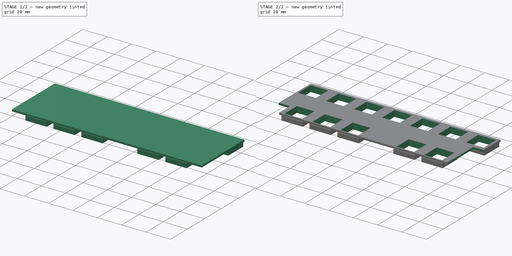
[diagram: build sequence overview — one tinted view per stage of 2, left to right]
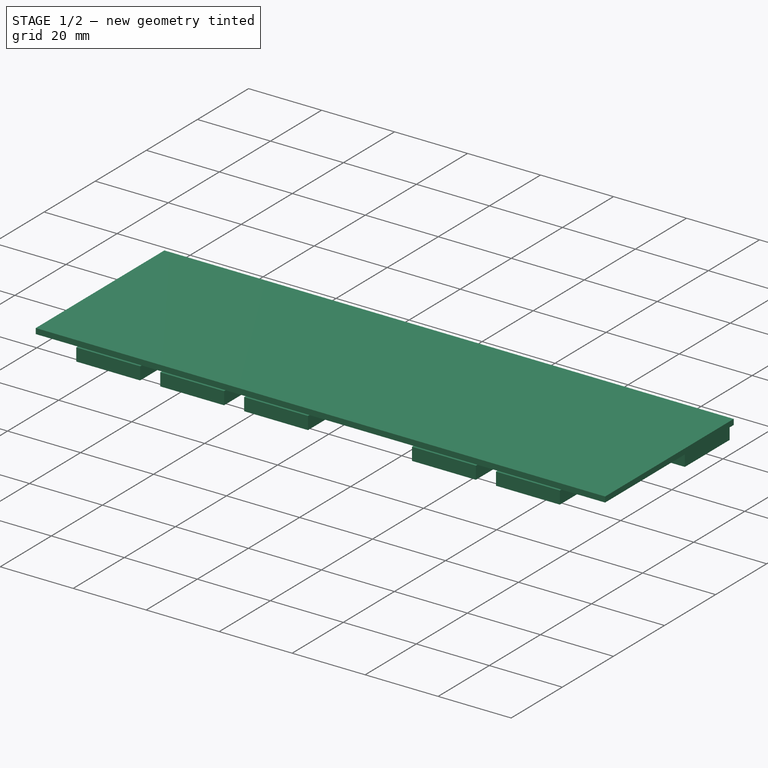
[diagram: stage 1 of 2 — iso view after this stage's code; geometry added in this stage tinted green]
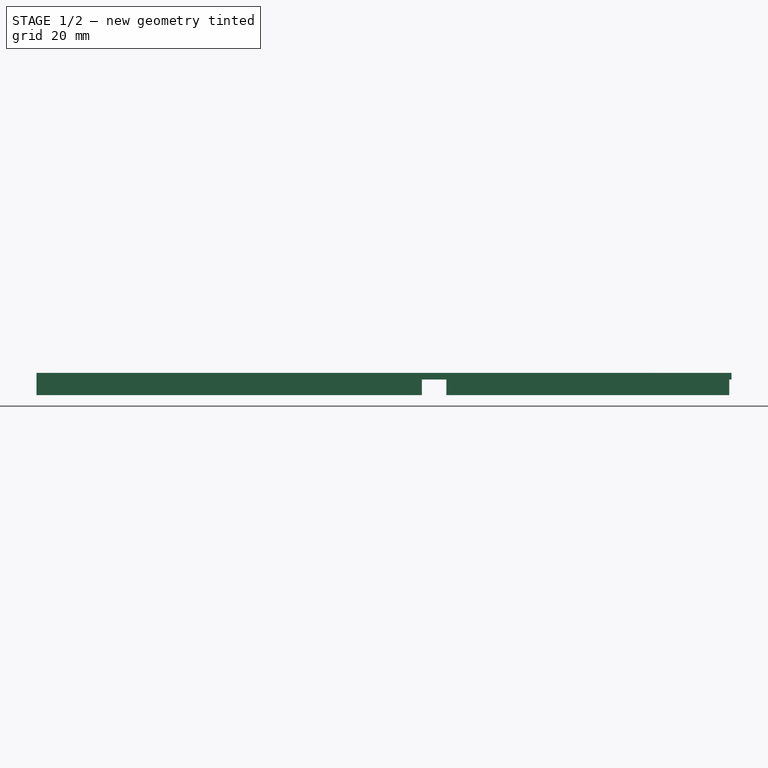
[diagram: stage 1 of 2 — front view after this stage's code; geometry added in this stage tinted green]
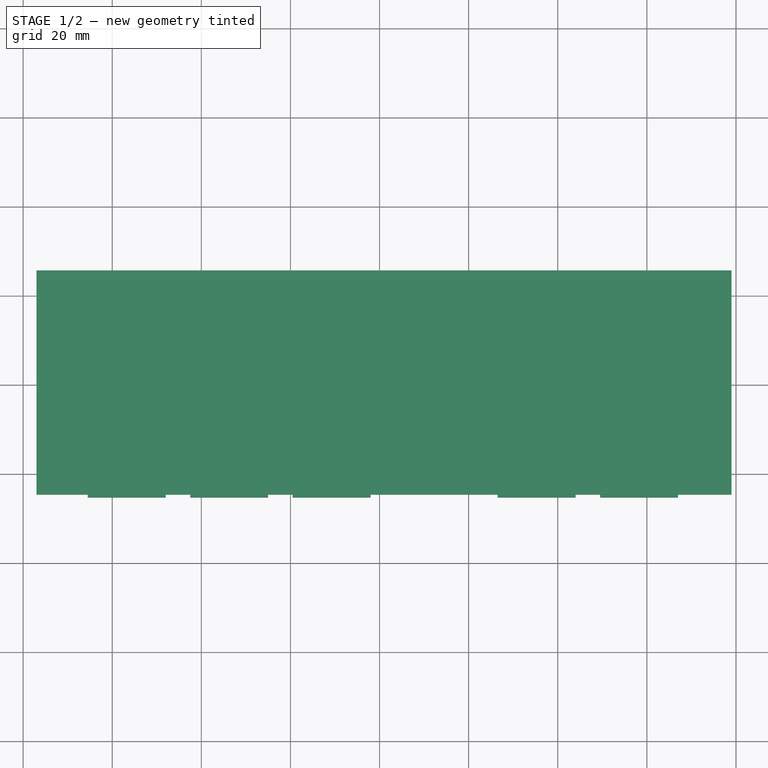
[diagram: stage 1 of 2 — top view after this stage's code; geometry added in this stage tinted green]
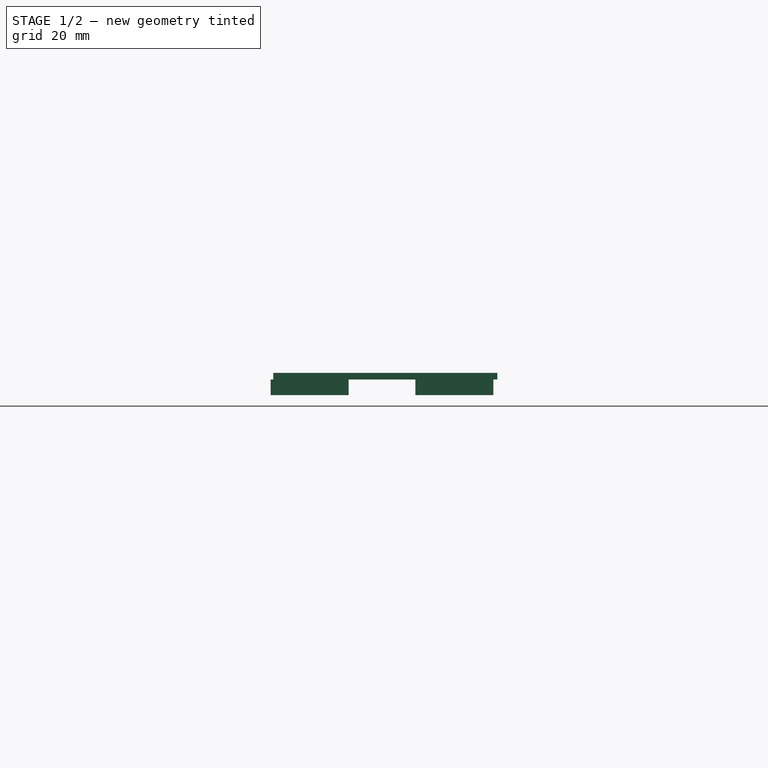
[diagram: stage 1 of 2 — right view after this stage's code; geometry added in this stage tinted green]
FCSTD DOCUMENT  (FreeCAD 0.20R29603 (Git))
Label: KeyPlate
License: All rights reserved
LicenseURL: http://en.wikipedia.org/wiki/All_rights_reserved
objects: Sketcher::SketchObject×4, PartDesign::Pad×2, PartDesign::Plane×2, PartDesign::Pocket×2, PartDesign::Body×1
note: 15 computed .brp shape members not serialized (recipe doc carries the construction recipe); baked Part::Feature solids carry a one-line shape summary decoded from their .brp

FEATURE [Sketcher::SketchObject] Sketch001
  FullyConstrained = true
  MapMode = 5
  Support = -> [XY_Plane]
  sketch-geometry (4):
    g0: LineSegment StartX=43 StartY=-54.35 StartZ=0 EndX=199 EndY=-54.35 EndZ=0
    g1: LineSegment StartX=199 StartY=-54.35 StartZ=0 EndX=199 EndY=-104.67 EndZ=0
    g2: LineSegment StartX=199 StartY=-104.67 StartZ=0 EndX=43 EndY=-104.67 EndZ=0
    g3: LineSegment StartX=43 StartY=-104.67 StartZ=0 EndX=43 EndY=-54.35 EndZ=0
  constraints (12):
    c: Coincident(g0,g1)
    c: Coincident(g1,g2)
    c: Coincident(g2,g3)
    c: Coincident(g3,g0)
    c: Horizontal(g0)
    c: Horizontal(g2)
    c: Vertical(g1)
    c: Vertical(g3)
    c: DistanceY(g2,g-1) = 104.67
    c: DistanceX(g-1,g2) = 43
    c: DistanceX(g-1,g0) = 199
    c: DistanceY(g0,g-1) = 54.35
FEATURE [PartDesign::Pad] Pad
  Direction = (0,0,1)
  Length = 1.5
  Length2 = 10
  Profile = -> Sketch001
  ReferenceAxis = -> Sketch001 [N_Axis]
  Type = 0
FEATURE [Sketcher::SketchObject] Sketch007
  FullyConstrained = true
  MapMode = 5
  Placement = pos=(0,0,1.5) rot=(0,0,1;0rad)
  sketch-geometry (8):
    g0: LineSegment StartX=38 StartY=-108.92 StartZ=0 EndX=52.19 EndY=-108.92 EndZ=0
    g1: LineSegment StartX=52.19 StartY=-108.92 StartZ=0 EndX=52.19 EndY=-92 EndZ=0
    g2: LineSegment StartX=52.19 StartY=-92 StartZ=0 EndX=38 EndY=-92 EndZ=0
    g3: LineSegment StartX=38 StartY=-92 StartZ=0 EndX=38 EndY=-108.92 EndZ=0
    g4: LineSegment StartX=207.85 StartY=-74.42 StartZ=0 EndX=190.68 EndY=-74.42 EndZ=0
    g5: LineSegment StartX=190.68 StartY=-74.42 StartZ=0 EndX=190.68 EndY=-113.38 EndZ=0
    g6: LineSegment StartX=190.68 StartY=-113.38 StartZ=0 EndX=207.85 EndY=-113.38 EndZ=0
    g7: LineSegment StartX=207.85 StartY=-113.38 StartZ=0 EndX=207.85 EndY=-74.42 EndZ=0
  constraints (24):
    c: Coincident(g0,g1)
    c: Coincident(g1,g2)
    c: Coincident(g2,g3)
    c: Coincident(g3,g0)
    c: Horizontal(g0)
    c: Horizontal(g2)
    c: Vertical(g1)
    c: Vertical(g3)
    c: DistanceY(g1,g-1) = 92
    c: DistanceX(g-1,g1) = 52.19
    c: Coincident(g4,g5)
    c: Coincident(g5,g6)
    c: Coincident(g6,g7)
    c: Coincident(g7,g4)
    c: Horizontal(g4)
    c: Horizontal(g6)
    c: Vertical(g5)
    c: Vertical(g7)
    c: DistanceX(g-1,g4) = 190.68
    c: DistanceY(g4,g-1) = 74.42
    c: DistanceX(g-1,g0) = 38
    c: DistanceY(g0,g-1) = 108.92
    c: DistanceX(g-1,g6) = 207.85
    c: DistanceY(g6,g-1) = 113.38
FEATURE [PartDesign::Plane] DatumPlane
  Length = 258.162
  MapMode = 5
  Placement = pos=(0,0,0) rot=(1,0,0;3.14159rad)
  ResizeMode = 0
  Support = -> [Pad]
  Width = 164.412
FEATURE [Sketcher::SketchObject] Sketch004
  FullyConstrained = true
  MapMode = 5
  Placement = pos=(0,0,0) rot=(1,0,0;3.14159rad)
  Support = -> [DatumPlane]
  sketch-geometry (60):
    g0: LineSegment StartX=43 StartY=72.75 StartZ=0 EndX=60.5 EndY=72.75 EndZ=0
    g1: LineSegment StartX=60.5 StartY=72.75 StartZ=0 EndX=60.5 EndY=55.25 EndZ=0
    g2: LineSegment StartX=60.5 StartY=55.25 StartZ=0 EndX=43 EndY=55.25 EndZ=0
    g3: LineSegment StartX=43 StartY=55.25 StartZ=0 EndX=43 EndY=72.75 EndZ=0
    g4: GeomPoint X=51.75 Y=64 Z=0
    g5: LineSegment StartX=66 StartY=72.75 StartZ=0 EndX=83.5 EndY=72.75 EndZ=0
    g6: LineSegment StartX=83.5 StartY=72.75 StartZ=0 EndX=83.5 EndY=55.25 EndZ=0
    g7: LineSegment StartX=83.5 StartY=55.25 StartZ=0 EndX=66 EndY=55.25 EndZ=0
    g8: LineSegment StartX=66 StartY=55.25 StartZ=0 EndX=66 EndY=72.75 EndZ=0
    g9: GeomPoint X=74.75 Y=64 Z=0
    g10: LineSegment StartX=89 StartY=72.75 StartZ=0 EndX=106.5 EndY=72.75 EndZ=0
    g11: LineSegment StartX=106.5 StartY=72.75 StartZ=0 EndX=106.5 EndY=55.25 EndZ=0
    g12: LineSegment StartX=106.5 StartY=55.25 StartZ=0 EndX=89 EndY=55.25 EndZ=0
    g13: LineSegment StartX=89 StartY=55.25 StartZ=0 EndX=89 EndY=72.75 EndZ=0
    g14: GeomPoint X=97.75 Y=64 Z=0
    g15: LineSegment StartX=112 StartY=72.75 StartZ=0 EndX=129.5 EndY=72.75 EndZ=0
    g16: LineSegment StartX=129.5 StartY=72.75 StartZ=0 EndX=129.5 EndY=55.25 EndZ=0
    g17: LineSegment StartX=129.5 StartY=55.25 StartZ=0 EndX=112 EndY=55.25 EndZ=0
    g18: LineSegment StartX=112 StartY=55.25 StartZ=0 EndX=112 EndY=72.75 EndZ=0
    g19: GeomPoint X=120.75 Y=64 Z=0
    g20: LineSegment StartX=135 StartY=72.75 StartZ=0 EndX=152.5 EndY=72.75 EndZ=0
    g21: LineSegment StartX=152.5 StartY=72.75 StartZ=0 EndX=152.5 EndY=55.25 EndZ=0
    g22: LineSegment StartX=152.5 StartY=55.25 StartZ=0 EndX=135 EndY=55.25 EndZ=0
    g23: LineSegment StartX=135 StartY=55.25 StartZ=0 EndX=135 EndY=72.75 EndZ=0
    g24: GeomPoint X=143.75 Y=64 Z=0
    g25: LineSegment StartX=158 StartY=72.75 StartZ=0 EndX=175.5 EndY=72.75 EndZ=0
    g26: LineSegment StartX=175.5 StartY=72.75 StartZ=0 EndX=175.5 EndY=55.25 EndZ=0
    g27: LineSegment StartX=175.5 StartY=55.25 StartZ=0 EndX=158 EndY=55.25 EndZ=0
    g28: LineSegment StartX=158 StartY=55.25 StartZ=0 EndX=158 EndY=72.75 EndZ=0
    g29: GeomPoint X=166.75 Y=64 Z=0
    g30: LineSegment StartX=181 StartY=72.75 StartZ=0 EndX=198.5 EndY=72.75 EndZ=0
    g31: LineSegment StartX=198.5 StartY=72.75 StartZ=0 EndX=198.5 EndY=55.25 EndZ=0
    g32: LineSegment StartX=198.5 StartY=55.25 StartZ=0 EndX=181 EndY=55.25 EndZ=0
    g33: LineSegment StartX=181 StartY=55.25 StartZ=0 EndX=181 EndY=72.75 EndZ=0
    g34: GeomPoint X=189.75 Y=64 Z=0
    g35: LineSegment StartX=54.5 StartY=105.25 StartZ=0 EndX=72 EndY=105.25 EndZ=0
    g36: LineSegment StartX=72 StartY=105.25 StartZ=0 EndX=72 EndY=87.75 EndZ=0
    g37: LineSegment StartX=72 StartY=87.75 StartZ=0 EndX=54.5 EndY=87.75 EndZ=0
    g38: LineSegment StartX=54.5 StartY=87.75 StartZ=0 EndX=54.5 EndY=105.25 EndZ=0
    g39: GeomPoint X=63.25 Y=96.5 Z=0
    g40: LineSegment StartX=77.5 StartY=105.25 StartZ=0 EndX=95 EndY=105.25 EndZ=0
    g41: LineSegment StartX=95 StartY=105.25 StartZ=0 EndX=95 EndY=87.75 EndZ=0
    g42: LineSegment StartX=95 StartY=87.75 StartZ=0 EndX=77.5 EndY=87.75 EndZ=0
    g43: LineSegment StartX=77.5 StartY=87.75 StartZ=0 EndX=77.5 EndY=105.25 EndZ=0
    g44: GeomPoint X=86.25 Y=96.5 Z=0
    g45: LineSegment StartX=100.5 StartY=105.25 StartZ=0 EndX=118 EndY=105.25 EndZ=0
    g46: LineSegment StartX=118 StartY=105.25 StartZ=0 EndX=118 EndY=87.75 EndZ=0
    g47: LineSegment StartX=118 StartY=87.75 StartZ=0 EndX=100.5 EndY=87.75 EndZ=0
    g48: LineSegment StartX=100.5 StartY=87.75 StartZ=0 EndX=100.5 EndY=105.25 EndZ=0
    g49: GeomPoint X=109.25 Y=96.5 Z=0
    g50: LineSegment StartX=146.5 StartY=105.25 StartZ=0 EndX=164 EndY=105.25 EndZ=0
    g51: LineSegment StartX=164 StartY=105.25 StartZ=0 EndX=164 EndY=87.75 EndZ=0
    g52: LineSegment StartX=164 StartY=87.75 StartZ=0 EndX=146.5 EndY=87.75 EndZ=0
    g53: LineSegment StartX=146.5 StartY=87.75 StartZ=0 EndX=146.5 EndY=105.25 EndZ=0
    g54: GeomPoint X=155.25 Y=96.5 Z=0
    g55: LineSegment StartX=169.5 StartY=105.25 StartZ=0 EndX=187 EndY=105.25 EndZ=0
    g56: LineSegment StartX=187 StartY=105.25 StartZ=0 EndX=187 EndY=87.75 EndZ=0
    g57: LineSegment StartX=187 StartY=87.75 StartZ=0 EndX=169.5 EndY=87.75 EndZ=0
    g58: LineSegment StartX=169.5 StartY=87.75 StartZ=0 EndX=169.5 EndY=105.25 EndZ=0
    g59: GeomPoint X=178.25 Y=96.5 Z=0
  constraints (156):
    c: Coincident(g0,g1)
    c: Coincident(g1,g2)
    c: Coincident(g2,g3)
    c: Coincident(g3,g0)
    c: Horizontal(g0)
    c: Horizontal(g2)
    c: Vertical(g1)
    c: Vertical(g3)
    c: Symmetric(g0,g2,g4)
    c: Coincident(g5,g6)
    c: Coincident(g6,g7)
    c: Coincident(g7,g8)
    c: Coincident(g8,g5)
    c: Horizontal(g5)
    c: Horizontal(g7)
    c: Vertical(g6)
    c: Vertical(g8)
    c: Symmetric(g5,g7,g9)
    c: Coincident(g10,g11)
    c: Coincident(g11,g12)
    c: Coincident(g12,g13)
    c: Coincident(g13,g10)
    c: Horizontal(g10)
    c: Horizontal(g12)
    c: Vertical(g11)
    c: Vertical(g13)
    c: Symmetric(g10,g12,g14)
    c: Coincident(g15,g16)
    c: Coincident(g16,g17)
    c: Coincident(g17,g18)
    c: Coincident(g18,g15)
    c: Horizontal(g15)
    c: Horizontal(g17)
    c: Vertical(g16)
    c: Vertical(g18)
    c: Symmetric(g15,g17,g19)
    c: Coincident(g20,g21)
    c: Coincident(g21,g22)
    c: Coincident(g22,g23)
    c: Coincident(g23,g20)
    c: Horizontal(g20)
    c: Horizontal(g22)
    c: Vertical(g21)
    c: Vertical(g23)
    c: Symmetric(g20,g22,g24)
    c: Coincident(g25,g26)
    c: Coincident(g26,g27)
    c: Coincident(g27,g28)
    c: Coincident(g28,g25)
    c: Horizontal(g25)
    c: Horizontal(g27)
    c: Vertical(g26)
    c: Vertical(g28)
    c: Symmetric(g25,g27,g29)
    c: Coincident(g30,g31)
    c: Coincident(g31,g32)
    c: Coincident(g32,g33)
    c: Coincident(g33,g30)
    c: Horizontal(g30)
    c: Horizontal(g32)
    c: Vertical(g31)
    c: Vertical(g33)
    c: Symmetric(g30,g32,g34)
    c: Coincident(g35,g36)
    c: Coincident(g36,g37)
    c: Coincident(g37,g38)
    c: Coincident(g38,g35)
    c: Horizontal(g35)
    c: Horizontal(g37)
    c: Vertical(g36)
    c: Vertical(g38)
    c: DistanceX(g37,g37) = 17.5
    c: Symmetric(g35,g37,g39)
    c: Coincident(g40,g41)
    c: Coincident(g41,g42)
    c: Coincident(g42,g43)
    c: Coincident(g43,g40)
    c: Horizontal(g40)
    c: Horizontal(g42)
    c: Vertical(g41)
    c: Vertical(g43)
    c: Symmetric(g40,g42,g44)
    c: Coincident(g45,g46)
    c: Coincident(g46,g47)
    c: Coincident(g47,g48)
    c: Coincident(g48,g45)
    c: Horizontal(g45)
    c: Horizontal(g47)
    c: Vertical(g46)
    c: Vertical(g48)
    c: Symmetric(g45,g47,g49)
    c: Coincident(g50,g51)
    c: Coincident(g51,g52)
    c: Coincident(g52,g53)
    c: Coincident(g53,g50)
    c: Horizontal(g50)
    c: Horizontal(g52)
    c: Vertical(g51)
    c: Vertical(g53)
    c: Symmetric(g50,g52,g54)
    c: Coincident(g55,g56)
    c: Coincident(g56,g57)
    c: Coincident(g57,g58)
    c: Coincident(g58,g55)
    c: Horizontal(g55)
    c: Horizontal(g57)
    c: Vertical(g56)
    c: Vertical(g58)
    c: Symmetric(g55,g57,g59)
    c: DistanceY(g4,g-1) = -64
    c: DistanceX(g-1,g4) = 51.75
    c: DistanceY(g9,g-1) = -64
    c: DistanceX(g-1,g9) = 74.75
    c: DistanceY(g14,g-1) = -64
    c: DistanceX(g-1,g14) = 97.75
    c: DistanceX(g-1,g19) = 120.75
    c: DistanceY(g19,g-1) = -64
    c: DistanceX(g-1,g24) = 143.75
    c: DistanceY(g24,g-1) = -64
    c: DistanceX(g-1,g29) = 166.75
    c: DistanceY(g29,g-1) = -64
    c: DistanceX(g-1,g34) = 189.75
    c: DistanceY(g34,g-1) = -64
    c: DistanceY(g39,g-1) = -96.5
    c: DistanceX(g-1,g39) = 63.25
    c: DistanceY(g44,g-1) = -96.5
    c: DistanceX(g-1,g44) = 86.25
    c: DistanceX(g-1,g49) = 109.25
    c: DistanceY(g49,g-1) = -96.5
    c: DistanceX(g-1,g54) = 155.25
    c: DistanceY(g54,g-1) = -96.5
    c: DistanceX(g-1,g59) = 178.25
    c: DistanceY(g59,g-1) = -96.5
    c: Equal(g37,g42)
    c: Equal(g42,g41)
    c: Equal(g37,g36)
    c: Equal(g37,g47)
    c: Equal(g47,g46)
    c: Equal(g47,g52)
    c: Equal(g52,g51)
    c: Equal(g51,g57)
    c: Equal(g57,g56)
    c: Equal(g42,g2)
    c: Equal(g2,g1)
    c: Equal(g1,g7)
    c: Equal(g7,g6)
    c: Equal(g6,g12)
    c: Equal(g12,g11)
    c: Equal(g11,g16)
    c: Equal(g16,g17)
    c: Equal(g17,g22)
    c: Equal(g22,g21)
    c: Equal(g21,g27)
    c: Equal(g27,g26)
    c: Equal(g26,g32)
    c: Equal(g32,g31)
FEATURE [PartDesign::Pad] Pad001
  BaseFeature = -> Pad
  Direction = (0,0,-1)
  Length = 3.5
  Length2 = 10
  Profile = -> Sketch004
  ReferenceAxis = -> Sketch004 [N_Axis]
  Type = 0
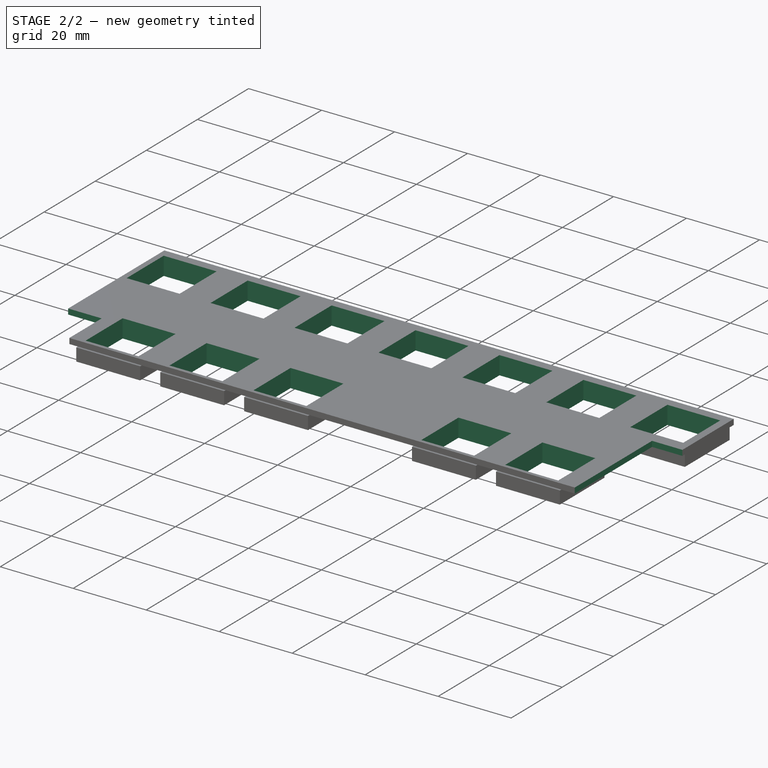
[diagram: stage 2 of 2 — iso view after this stage's code; geometry added in this stage tinted green]
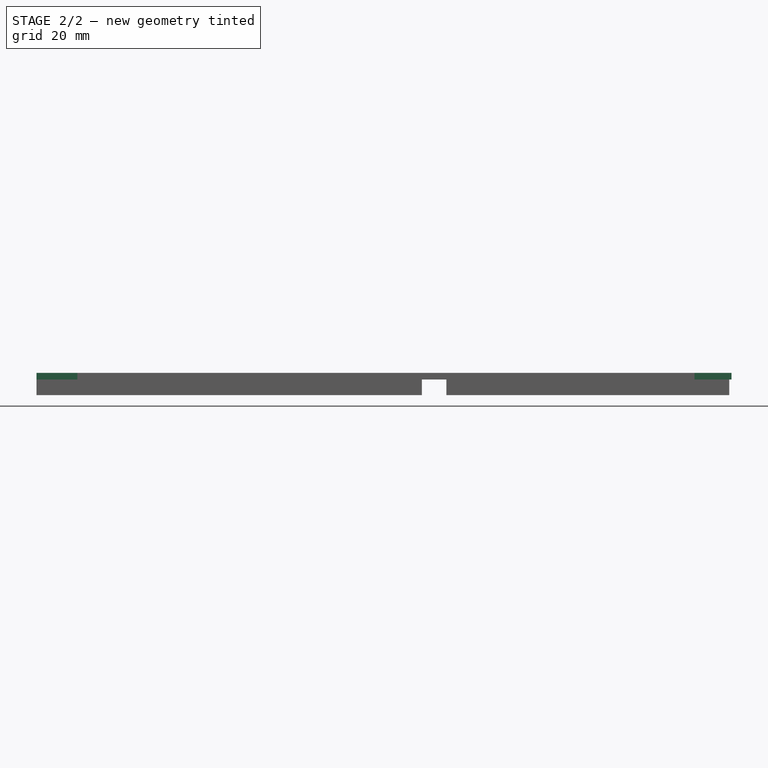
[diagram: stage 2 of 2 — front view after this stage's code; geometry added in this stage tinted green]
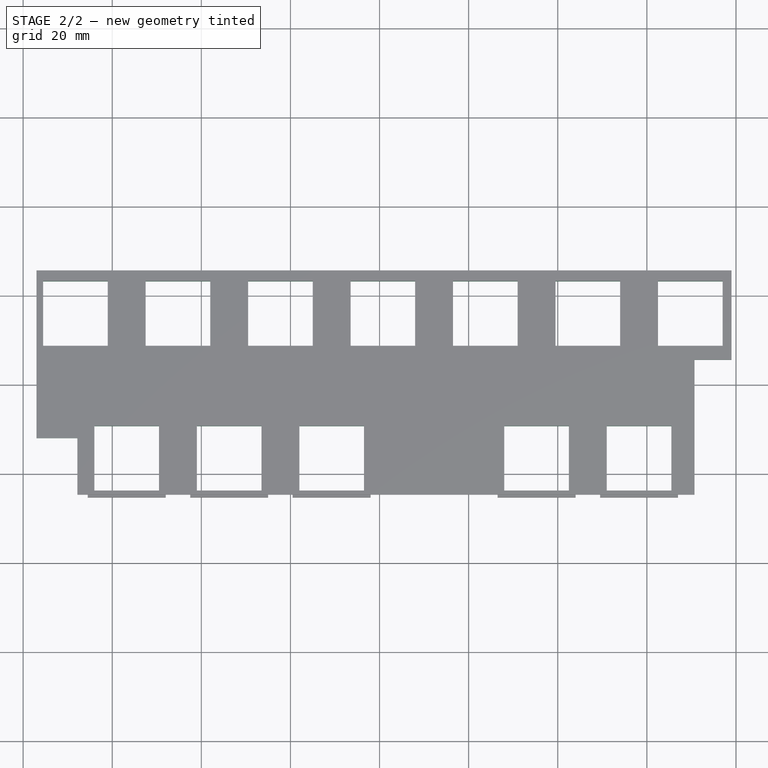
[diagram: stage 2 of 2 — top view after this stage's code; geometry added in this stage tinted green]
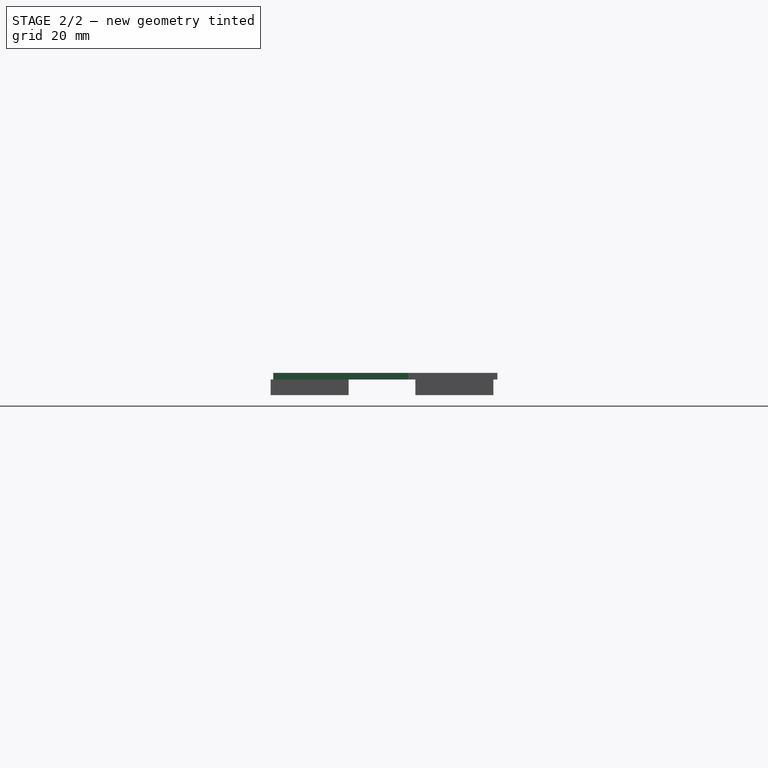
[diagram: stage 2 of 2 — right view after this stage's code; geometry added in this stage tinted green]
FEATURE [PartDesign::Plane] DatumPlane001
  Length = 258.162
  MapMode = 5
  Placement = pos=(0,0,1.5) rot=(0,0,1;0rad)
  ResizeMode = 0
  Support = -> [Pad001]
  Width = 164.412
FEATURE [Sketcher::SketchObject] Sketch005
  FullyConstrained = true
  MapMode = 5
  Placement = pos=(0,0,1.5) rot=(0,0,1;0rad)
  Support = -> [DatumPlane001]
  sketch-geometry (61):
    g0: LineSegment StartX=44.5 StartY=-56.75 StartZ=0 EndX=59 EndY=-56.75 EndZ=0
    g1: LineSegment StartX=59 StartY=-56.75 StartZ=0 EndX=59 EndY=-71.25 EndZ=0
    g2: LineSegment StartX=59 StartY=-71.25 StartZ=0 EndX=44.5 EndY=-71.25 EndZ=0
    g3: LineSegment StartX=44.5 StartY=-71.25 StartZ=0 EndX=44.5 EndY=-56.75 EndZ=0
    g4: GeomPoint X=51.75 Y=-64 Z=0
    g5: LineSegment StartX=67.5 StartY=-56.75 StartZ=0 EndX=82 EndY=-56.75 EndZ=0
    g6: LineSegment StartX=82 StartY=-56.75 StartZ=0 EndX=82 EndY=-71.25 EndZ=0
    g7: LineSegment StartX=82 StartY=-71.25 StartZ=0 EndX=67.5 EndY=-71.25 EndZ=0
    g8: LineSegment StartX=67.5 StartY=-71.25 StartZ=0 EndX=67.5 EndY=-56.75 EndZ=0
    g9: GeomPoint X=74.75 Y=-64 Z=0
    g10: LineSegment StartX=90.5 StartY=-56.75 StartZ=0 EndX=105 EndY=-56.75 EndZ=0
    g11: LineSegment StartX=105 StartY=-56.75 StartZ=0 EndX=105 EndY=-71.25 EndZ=0
    g12: LineSegment StartX=105 StartY=-71.25 StartZ=0 EndX=90.5 EndY=-71.25 EndZ=0
    g13: LineSegment StartX=90.5 StartY=-71.25 StartZ=0 EndX=90.5 EndY=-56.75 EndZ=0
    g14: GeomPoint X=97.75 Y=-64 Z=0
    g15: LineSegment StartX=113.5 StartY=-56.75 StartZ=0 EndX=128 EndY=-56.75 EndZ=0
    g16: LineSegment StartX=128 StartY=-56.75 StartZ=0 EndX=128 EndY=-71.25 EndZ=0
    g17: LineSegment StartX=128 StartY=-71.25 StartZ=0 EndX=113.5 EndY=-71.25 EndZ=0
    g18: LineSegment StartX=113.5 StartY=-71.25 StartZ=0 EndX=113.5 EndY=-56.75 EndZ=0
    g19: GeomPoint X=120.75 Y=-64 Z=0
    g20: LineSegment StartX=136.5 StartY=-56.75 StartZ=0 EndX=151 EndY=-56.75 EndZ=0
    g21: LineSegment StartX=151 StartY=-56.75 StartZ=0 EndX=151 EndY=-71.25 EndZ=0
    g22: LineSegment StartX=151 StartY=-71.25 StartZ=0 EndX=136.5 EndY=-71.25 EndZ=0
    g23: LineSegment StartX=136.5 StartY=-71.25 StartZ=0 EndX=136.5 EndY=-56.75 EndZ=0
    g24: GeomPoint X=143.75 Y=-64 Z=0
    g25: LineSegment StartX=159.5 StartY=-56.75 StartZ=0 EndX=174 EndY=-56.75 EndZ=0
    g26: LineSegment StartX=174 StartY=-56.75 StartZ=0 EndX=174 EndY=-71.25 EndZ=0
    g27: LineSegment StartX=174 StartY=-71.25 StartZ=0 EndX=159.5 EndY=-71.25 EndZ=0
    g28: LineSegment StartX=159.5 StartY=-71.25 StartZ=0 EndX=159.5 EndY=-56.75 EndZ=0
    g29: GeomPoint X=166.75 Y=-64 Z=0
    g30: LineSegment StartX=182.5 StartY=-56.75 StartZ=0 EndX=197 EndY=-56.75 EndZ=0
    g31: LineSegment StartX=197 StartY=-56.75 StartZ=0 EndX=197 EndY=-71.25 EndZ=0
    g32: LineSegment StartX=197 StartY=-71.25 StartZ=0 EndX=182.5 EndY=-71.25 EndZ=0
    g33: LineSegment StartX=182.5 StartY=-71.25 StartZ=0 EndX=182.5 EndY=-56.75 EndZ=0
    g34: GeomPoint X=189.75 Y=-64 Z=0
    g35: LineSegment StartX=56 StartY=-89.25 StartZ=0 EndX=70.5 EndY=-89.25 EndZ=0
    g36: LineSegment StartX=70.5 StartY=-89.25 StartZ=0 EndX=70.5 EndY=-103.75 EndZ=0
    g37: LineSegment StartX=70.5 StartY=-103.75 StartZ=0 EndX=56 EndY=-103.75 EndZ=0
    g38: LineSegment StartX=56 StartY=-103.75 StartZ=0 EndX=56 EndY=-89.25 EndZ=0
    g39: GeomPoint X=63.25 Y=-96.5 Z=0
    g40: LineSegment StartX=79 StartY=-89.25 StartZ=0 EndX=93.5 EndY=-89.25 EndZ=0
    g41: LineSegment StartX=93.5 StartY=-89.25 StartZ=0 EndX=93.5 EndY=-103.75 EndZ=0
    g42: LineSegment StartX=93.5 StartY=-103.75 StartZ=0 EndX=79 EndY=-103.75 EndZ=0
    g43: LineSegment StartX=79 StartY=-103.75 StartZ=0 EndX=79 EndY=-89.25 EndZ=0
    g44: GeomPoint X=86.25 Y=-96.5 Z=0
    g45: LineSegment StartX=102 StartY=-89.25 StartZ=0 EndX=116.5 EndY=-89.25 EndZ=0
    g46: LineSegment StartX=116.5 StartY=-89.25 StartZ=0 EndX=116.5 EndY=-103.75 EndZ=0
    g47: LineSegment StartX=116.5 StartY=-103.75 StartZ=0 EndX=102 EndY=-103.75 EndZ=0
    g48: LineSegment StartX=102 StartY=-103.75 StartZ=0 EndX=102 EndY=-89.25 EndZ=0
    g49: GeomPoint X=109.25 Y=-96.5 Z=0
    g50: LineSegment StartX=148 StartY=-89.25 StartZ=0 EndX=162.5 EndY=-89.25 EndZ=0
    g51: LineSegment StartX=162.5 StartY=-89.25 StartZ=0 EndX=162.5 EndY=-103.75 EndZ=0
    g52: LineSegment StartX=162.5 StartY=-103.75 StartZ=0 EndX=148 EndY=-103.75 EndZ=0
    g53: LineSegment StartX=148 StartY=-103.75 StartZ=0 EndX=148 EndY=-89.25 EndZ=0
    g54: GeomPoint X=155.25 Y=-96.5 Z=0
    g55: LineSegment StartX=171 StartY=-89.25 StartZ=0 EndX=185.5 EndY=-89.25 EndZ=0
    g56: LineSegment StartX=185.5 StartY=-89.25 StartZ=0 EndX=185.5 EndY=-103.75 EndZ=0
    g57: LineSegment StartX=185.5 StartY=-103.75 StartZ=0 EndX=171 EndY=-103.75 EndZ=0
    g58: LineSegment StartX=171 StartY=-103.75 StartZ=0 EndX=171 EndY=-89.25 EndZ=0
    g59: GeomPoint X=178.25 Y=-96.5 Z=0
    g60: Circle CenterX=114 CenterY=-109 CenterZ=0 NormalX=0 NormalY=0 NormalZ=1 AngleXU=0 Radius=3.7
  constraints (159):
    c: Coincident(g0,g1)
    c: Coincident(g1,g2)
    c: Coincident(g2,g3)
    c: Coincident(g3,g0)
    c: Horizontal(g0)
    c: Horizontal(g2)
    c: Vertical(g1)
    c: Vertical(g3)
    c: Symmetric(g0,g2,g4)
    c: Coincident(g5,g6)
    c: Coincident(g6,g7)
    c: Coincident(g7,g8)
    c: Coincident(g8,g5)
    c: Horizontal(g5)
    c: Horizontal(g7)
    c: Vertical(g6)
    c: Vertical(g8)
    c: Symmetric(g5,g7,g9)
    c: Coincident(g10,g11)
    c: Coincident(g11,g12)
    c: Coincident(g12,g13)
    c: Coincident(g13,g10)
    c: Horizontal(g10)
    c: Horizontal(g12)
    c: Vertical(g11)
    c: Vertical(g13)
    c: Symmetric(g10,g12,g14)
    c: Coincident(g15,g16)
    c: Coincident(g16,g17)
    c: Coincident(g17,g18)
    c: Coincident(g18,g15)
    c: Horizontal(g15)
    c: Horizontal(g17)
    c: Vertical(g16)
    c: Vertical(g18)
    c: Symmetric(g15,g17,g19)
    c: Coincident(g20,g21)
    c: Coincident(g21,g22)
    c: Coincident(g22,g23)
    c: Coincident(g23,g20)
    c: Horizontal(g20)
    c: Horizontal(g22)
    c: Vertical(g21)
    c: Vertical(g23)
    c: Symmetric(g20,g22,g24)
    c: Coincident(g25,g26)
    c: Coincident(g26,g27)
    c: Coincident(g27,g28)
    c: Coincident(g28,g25)
    c: Horizontal(g25)
    c: Horizontal(g27)
    c: Vertical(g26)
    c: Vertical(g28)
    c: Symmetric(g25,g27,g29)
    c: Coincident(g30,g31)
    c: Coincident(g31,g32)
    c: Coincident(g32,g33)
    c: Coincident(g33,g30)
    c: Horizontal(g30)
    c: Horizontal(g32)
    c: Vertical(g31)
    c: Vertical(g33)
    c: Symmetric(g30,g32,g34)
    c: Coincident(g35,g36)
    c: Coincident(g36,g37)
    c: Coincident(g37,g38)
    c: Coincident(g38,g35)
    c: Horizontal(g35)
    c: Horizontal(g37)
    c: Vertical(g36)
    c: Vertical(g38)
    c: DistanceY(g36,g36) = 14.5
    c: Symmetric(g35,g37,g39)
    c: Coincident(g40,g41)
    c: Coincident(g41,g42)
    c: Coincident(g42,g43)
    c: Coincident(g43,g40)
    c: Horizontal(g40)
    c: Horizontal(g42)
    c: Vertical(g41)
    c: Vertical(g43)
    c: Symmetric(g40,g42,g44)
    c: Coincident(g45,g46)
    c: Coincident(g46,g47)
    c: Coincident(g47,g48)
    c: Coincident(g48,g45)
    c: Horizontal(g45)
    c: Horizontal(g47)
    c: Vertical(g46)
    c: Vertical(g48)
    c: Symmetric(g45,g47,g49)
    c: Coincident(g50,g51)
    c: Coincident(g51,g52)
    c: Coincident(g52,g53)
    c: Coincident(g53,g50)
    c: Horizontal(g50)
    c: Horizontal(g52)
    c: Vertical(g51)
    c: Vertical(g53)
    c: Symmetric(g50,g52,g54)
    c: Coincident(g55,g56)
    c: Coincident(g56,g57)
    c: Coincident(g57,g58)
    c: Coincident(g58,g55)
    c: Horizontal(g55)
    c: Horizontal(g57)
    c: Vertical(g56)
    c: Vertical(g58)
    c: Symmetric(g55,g57,g59)
    c: DistanceY(g4,g-1) = 64
    c: DistanceX(g-1,g4) = 51.75
    c: DistanceY(g9,g-1) = 64
    c: DistanceX(g-1,g9) = 74.75
    c: DistanceY(g14,g-1) = 64
    c: DistanceX(g-1,g14) = 97.75
    c: DistanceX(g-1,g19) = 120.75
    c: DistanceY(g19,g-1) = 64
    c: DistanceX(g-1,g24) = 143.75
    c: DistanceY(g24,g-1) = 64
    c: DistanceX(g-1,g29) = 166.75
    c: DistanceY(g29,g-1) = 64
    c: DistanceX(g-1,g34) = 189.75
    c: DistanceY(g34,g-1) = 64
    c: DistanceY(g39,g-1) = 96.5
    c: DistanceX(g-1,g39) = 63.25
    c: DistanceY(g44,g-1) = 96.5
    c: DistanceX(g-1,g44) = 86.25
    c: DistanceX(g-1,g49) = 109.25
    c: DistanceY(g49,g-1) = 96.5
    c: DistanceX(g-1,g54) = 155.25
    c: DistanceY(g54,g-1) = 96.5
    c: DistanceX(g-1,g59) = 178.25
    c: DistanceY(g59,g-1) = 96.5
    c: DistanceX(g-1,g60) = 114
    c: DistanceY(g60,g-1) = 109
    c: Radius(g60) = 3.7
    c: Equal(g38,g35)
    c: Equal(g35,g43)
    c: Equal(g43,g40)
    c: Equal(g40,g48)
    c: Equal(g48,g45)
    c: Equal(g45,g53)
    c: Equal(g53,g50)
    c: Equal(g50,g58)
    c: Equal(g58,g55)
    c: Equal(g55,g3)
    c: Equal(g3,g0)
    c: Equal(g0,g8)
    c: Equal(g8,g5)
    c: Equal(g5,g13)
    c: Equal(g13,g10)
    c: Equal(g10,g18)
    c: Equal(g18,g15)
    c: Equal(g15,g23)
    c: Equal(g23,g20)
    c: Equal(g20,g28)
    c: Equal(g28,g25)
    c: Equal(g25,g33)
    c: Equal(g33,g30)
FEATURE [PartDesign::Pocket] Pocket
  BaseFeature = -> Pad001
  Direction = (0,0,-1)
  Length = 5
  Length2 = 5
  Profile = -> Sketch005
  ReferenceAxis = -> Sketch005 [N_Axis]
  Type = 0
FEATURE [PartDesign::Pocket] Pocket001
  BaseFeature = -> Pocket
  Direction = (0,0,-1)
  Length = 5
  Length2 = 5
  Profile = -> Sketch007
  ReferenceAxis = -> Sketch007 [N_Axis]
  Type = 0
FEATURE [PartDesign::Body] Body
  Group = -> [Sketch001,Pad,Sketch004,DatumPlane,Pad001,Sketch005,DatumPlane001,Pocket,Sketch007,Pocket001]
  Origin = -> Origin
  Tip = -> Pocket001
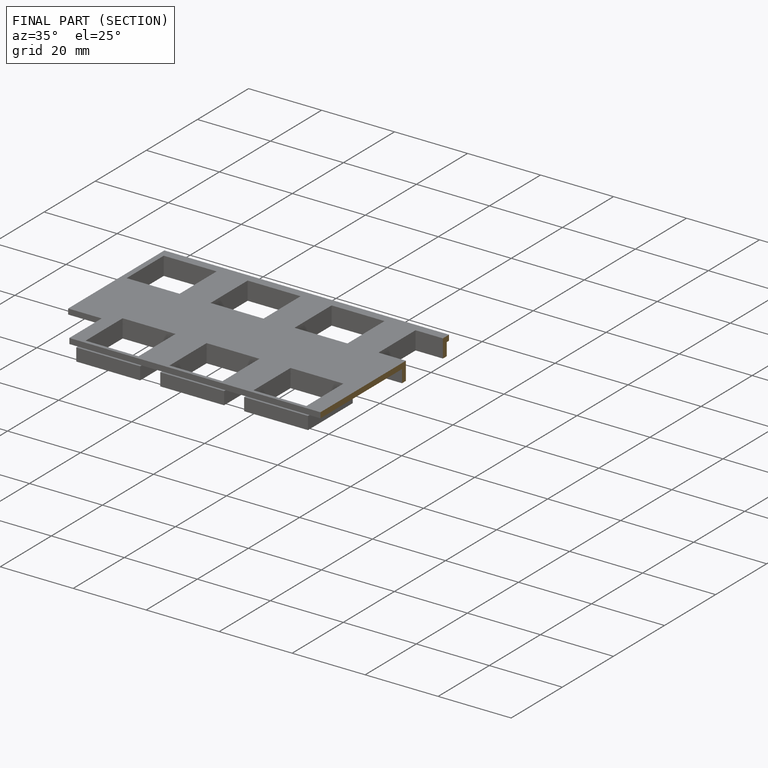
[diagram: finished part — half-section view (interior)]
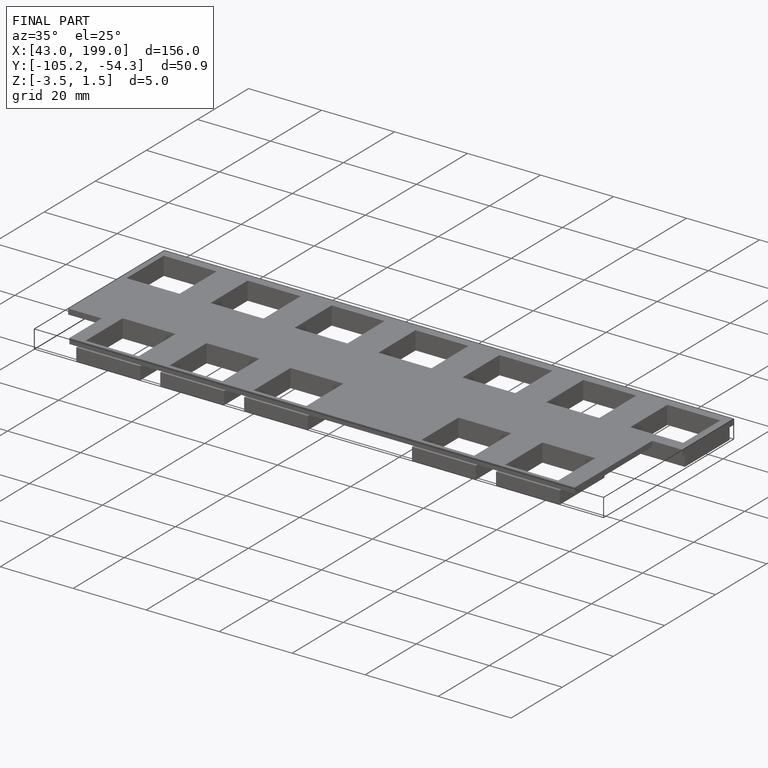
[diagram: finished part — iso view with bounding-box wireframe]
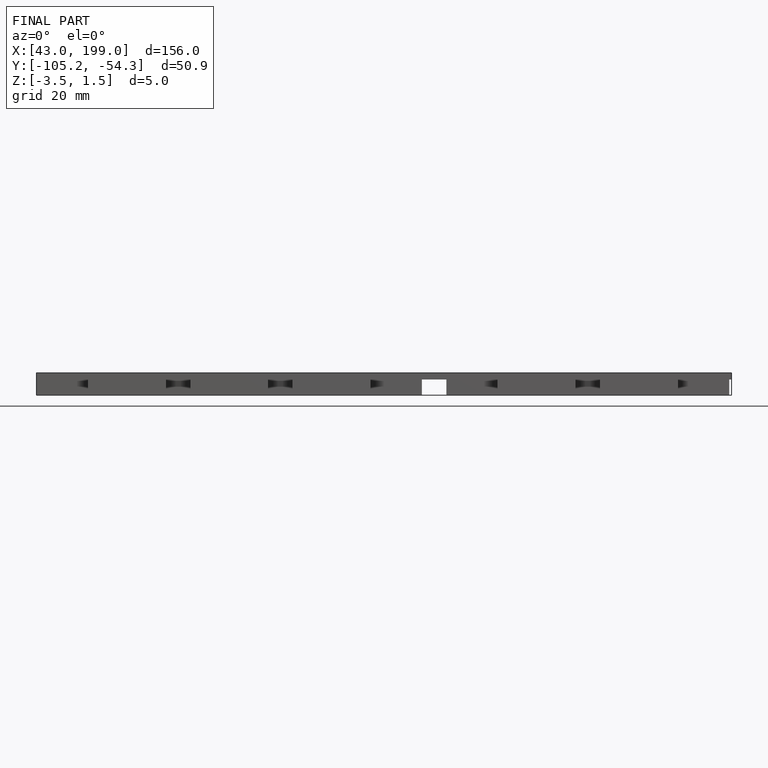
[diagram: finished part — front view with bounding-box wireframe]
